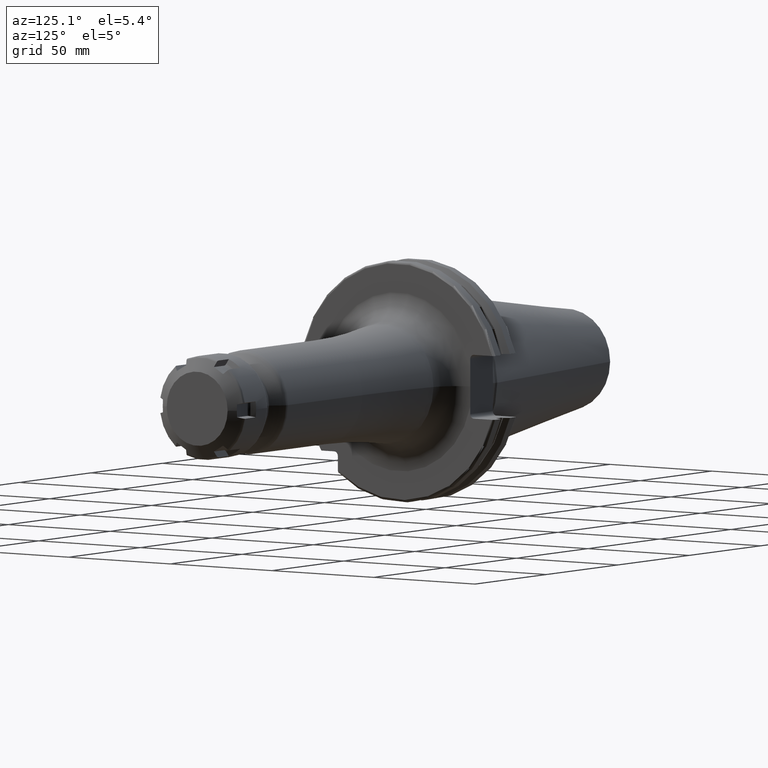
[diagram: clean part render]
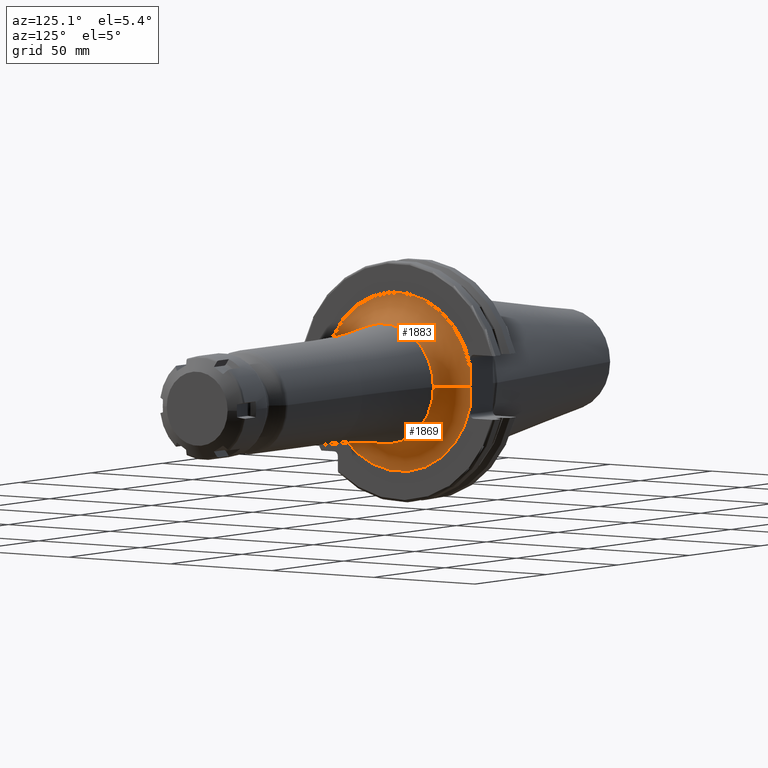
[diagram: same view with one multi-face feature highlighted, each face labeled with its STEP entity id]
A machine part, auxiliary view. The highlighted faces form ONE feature: a constant-radius fillet chain: 2 tangent blend faces with common blend radius 12 mm. The faces share edges in the B-rep.
Their STEP definitions:
[1] entity #1869 (Torus):
#130=CARTESIAN_POINT('',(1.905E1,0.E0,0.E0));
#131=DIRECTION('',(1.E0,0.E0,0.E0));
#132=DIRECTION('',(0.E0,-1.E0,0.E0));
#133=AXIS2_PLACEMENT_3D('',#130,#131,#132);
#176=CARTESIAN_POINT('',(3.105E1,-3.622816150469E1,7.180811500973E-12));
#177=DIRECTION('',(0.E0,-1.982121064503E-13,-1.E0));
#178=DIRECTION('',(-1.E0,1.717144944754E-14,0.E0));
#179=AXIS2_PLACEMENT_3D('',#176,#177,#178);
#181=CARTESIAN_POINT('',(1.905E1,3.529995739956E1,-8.147823337211E0));
#182=CARTESIAN_POINT('',(1.905E1,3.529995739956E1,-7.246693108264E0));
#183=CARTESIAN_POINT('',(1.906006626828E1,3.530001988020E1,-5.441935888463E0));
#184=CARTESIAN_POINT('',(1.908018451256E1,3.529999431994E1,-2.724434750791E0));
#185=CARTESIAN_POINT('',(1.908594698194E1,3.53E1,-9.095607024763E-1));
#186=CARTESIAN_POINT('',(1.908594900345E1,3.53E1,-1.012410747036E-3));
#195=CARTESIAN_POINT('',(3.105E1,3.622816148979E1,-1.039030595943E-3));
#196=DIRECTION('',(0.E0,2.868019112171E-5,9.999999995887E-1));
#197=DIRECTION('',(-9.970042497129E-1,-7.734679081569E-2,2.218320744157E-6));
#198=AXIS2_PLACEMENT_3D('',#195,#196,#197);
#205=CARTESIAN_POINT('',(2.925833333333E1,0.E0,0.E0));
#206=DIRECTION('',(1.E0,0.E0,0.E0));
#207=DIRECTION('',(0.E0,-1.E0,0.E0));
#208=AXIS2_PLACEMENT_3D('',#205,#206,#207);
#1601=CARTESIAN_POINT('',(1.905E1,-3.622816150469E1,6.040422268178E-14));
#1602=CARTESIAN_POINT('',(1.905E1,3.530022866998E1,-8.146995879274E0));
#1603=VERTEX_POINT('',#1601);
#1604=VERTEX_POINT('',#1602);
#1605=CARTESIAN_POINT('',(2.925833333333E1,-2.436266823405E1,0.E0));
#1606=CARTESIAN_POINT('',(2.925833333333E1,2.436266823405E1,0.E0));
#1607=VERTEX_POINT('',#1605);
#1608=VERTEX_POINT('',#1606);
#1615=CARTESIAN_POINT('',(1.908594900345E1,3.53E1,-1.012410747013E-3));
#1616=VERTEX_POINT('',#1615);
#1854=CARTESIAN_POINT('',(3.105E1,0.E0,0.E0));
#1855=DIRECTION('',(1.E0,0.E0,0.E0));
#1856=DIRECTION('',(0.E0,-9.999761708853E-1,6.903452871557E-3));
#1857=AXIS2_PLACEMENT_3D('',#1854,#1855,#1856);
#1858=TOROIDAL_SURFACE('',#1857,3.622816150469E1,1.2E1);
#1859=ORIENTED_EDGE('',*,*,#1815,.F.);
#1861=ORIENTED_EDGE('',*,*,#1860,.T.);
#1863=ORIENTED_EDGE('',*,*,#1862,.T.);
#1865=ORIENTED_EDGE('',*,*,#1864,.F.);
#1866=ORIENTED_EDGE('',*,*,#1790,.F.);
#1867=EDGE_LOOP('',(#1859,#1861,#1863,#1865,#1866));
#1868=FACE_OUTER_BOUND('',#1867,.F.);
#1869=ADVANCED_FACE('',(#1868),#1858,.F.);
#134=CIRCLE('',#133,3.622816150469E1);
#180=CIRCLE('',#179,1.2E1);
#187=B_SPLINE_CURVE_WITH_KNOTS('',3,(#181,#182,#183,#184,#185,#186),
.UNSPECIFIED.,.F.,.F.,(4,1,1,4),(0.E0,3.333333333333E-1,6.666666666667E-1,1.E0),
.UNSPECIFIED.);
#199=CIRCLE('',#198,1.2E1);
#209=CIRCLE('',#208,2.436266823405E1);
#1790=EDGE_CURVE('',#1604,#1616,#187,.T.);
#1815=EDGE_CURVE('',#1603,#1604,#134,.T.);
#1860=EDGE_CURVE('',#1603,#1607,#180,.T.);
#1862=EDGE_CURVE('',#1607,#1608,#209,.T.);
#1864=EDGE_CURVE('',#1616,#1608,#199,.T.);
[2] entity #1883 (Torus):
#171=CARTESIAN_POINT('',(1.905E1,0.E0,0.E0));
#172=DIRECTION('',(1.E0,0.E0,0.E0));
#173=DIRECTION('',(0.E0,9.743845292243E-1,2.248883927828E-1));
#174=AXIS2_PLACEMENT_3D('',#171,#172,#173);
#176=CARTESIAN_POINT('',(3.105E1,-3.622816150469E1,7.180811500973E-12));
#177=DIRECTION('',(0.E0,-1.982121064503E-13,-1.E0));
#178=DIRECTION('',(-1.E0,1.717144944754E-14,0.E0));
#179=AXIS2_PLACEMENT_3D('',#176,#177,#178);
#188=CARTESIAN_POINT('',(1.908594900345E1,3.53E1,-1.012410747036E-3));
#189=CARTESIAN_POINT('',(1.908595102715E1,3.53E1,9.085226080371E-1));
#190=CARTESIAN_POINT('',(1.908018392793E1,3.529999417512E1,2.724878112814E0));
#191=CARTESIAN_POINT('',(1.906005612021E1,3.530002038710E1,5.443099346373E0));
#192=CARTESIAN_POINT('',(1.905E1,3.529995631337E1,7.247387408510E0));
#193=CARTESIAN_POINT('',(1.905E1,3.529995631337E1,8.147932362891E0));
#195=CARTESIAN_POINT('',(3.105E1,3.622816148979E1,-1.039030595943E-3));
#196=DIRECTION('',(0.E0,2.868019112171E-5,9.999999995887E-1));
#197=DIRECTION('',(-9.970042497129E-1,-7.734679081569E-2,2.218320744157E-6));
#198=AXIS2_PLACEMENT_3D('',#195,#196,#197);
#200=CARTESIAN_POINT('',(2.925833333333E1,0.E0,0.E0));
#201=DIRECTION('',(1.E0,0.E0,0.E0));
#202=DIRECTION('',(0.E0,1.E0,0.E0));
#203=AXIS2_PLACEMENT_3D('',#200,#201,#202);
#1601=CARTESIAN_POINT('',(1.905E1,-3.622816150469E1,6.040422268178E-14));
#1603=VERTEX_POINT('',#1601);
#1605=CARTESIAN_POINT('',(2.925833333333E1,-2.436266823405E1,0.E0));
#1606=CARTESIAN_POINT('',(2.925833333333E1,2.436266823405E1,0.E0));
#1607=VERTEX_POINT('',#1605);
#1608=VERTEX_POINT('',#1606);
#1609=CARTESIAN_POINT('',(1.905E1,3.530016009241E1,8.147293014265E0));
#1610=VERTEX_POINT('',#1609);
#1615=CARTESIAN_POINT('',(1.908594900345E1,3.53E1,-1.012410747013E-3));
#1616=VERTEX_POINT('',#1615);
#1870=CARTESIAN_POINT('',(3.105E1,0.E0,0.E0));
#1871=DIRECTION('',(1.E0,0.E0,0.E0));
#1872=DIRECTION('',(0.E0,1.485959642860E-3,-9.999988959614E-1));
#1873=AXIS2_PLACEMENT_3D('',#1870,#1871,#1872);
#1874=TOROIDAL_SURFACE('',#1873,3.622816150469E1,1.2E1);
#1876=ORIENTED_EDGE('',*,*,#1875,.T.);
#1877=ORIENTED_EDGE('',*,*,#1860,.F.);
#1878=ORIENTED_EDGE('',*,*,#1849,.F.);
#1879=ORIENTED_EDGE('',*,*,#1792,.F.);
#1880=ORIENTED_EDGE('',*,*,#1864,.T.);
#1881=EDGE_LOOP('',(#1876,#1877,#1878,#1879,#1880));
#1882=FACE_OUTER_BOUND('',#1881,.F.);
#1883=ADVANCED_FACE('',(#1882),#1874,.F.);
#175=CIRCLE('',#174,3.622816150469E1);
#180=CIRCLE('',#179,1.2E1);
#194=B_SPLINE_CURVE_WITH_KNOTS('',3,(#188,#189,#190,#191,#192,#193),
.UNSPECIFIED.,.F.,.F.,(4,1,1,4),(0.E0,3.333333333333E-1,6.666666666667E-1,1.E0),
.UNSPECIFIED.);
#199=CIRCLE('',#198,1.2E1);
#204=CIRCLE('',#203,2.436266823405E1);
#1792=EDGE_CURVE('',#1616,#1610,#194,.T.);
#1849=EDGE_CURVE('',#1610,#1603,#175,.T.);
#1860=EDGE_CURVE('',#1603,#1607,#180,.T.);
#1864=EDGE_CURVE('',#1616,#1608,#199,.T.);
#1875=EDGE_CURVE('',#1608,#1607,#204,.T.);